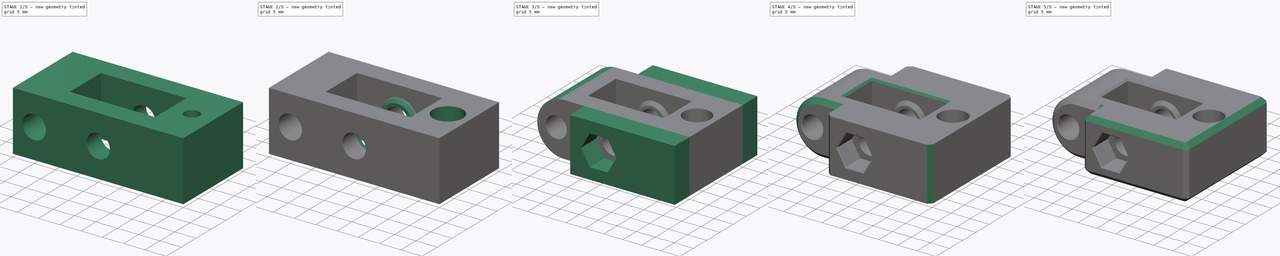
[diagram: build sequence overview — one tinted view per stage of 5, left to right]
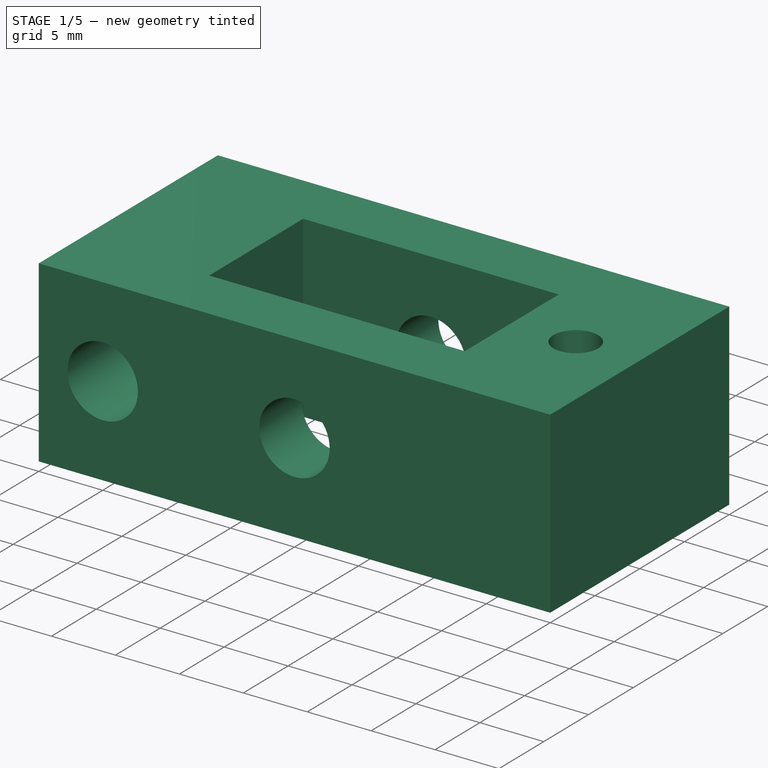
[diagram: stage 1 of 5 — iso view after this stage's code; geometry added in this stage tinted green]
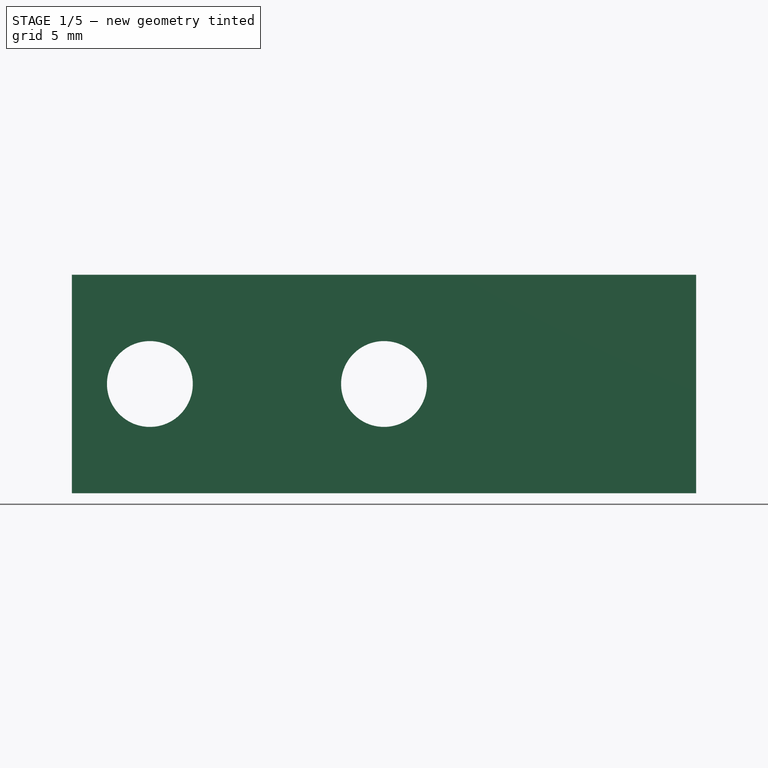
[diagram: stage 1 of 5 — front view after this stage's code; geometry added in this stage tinted green]
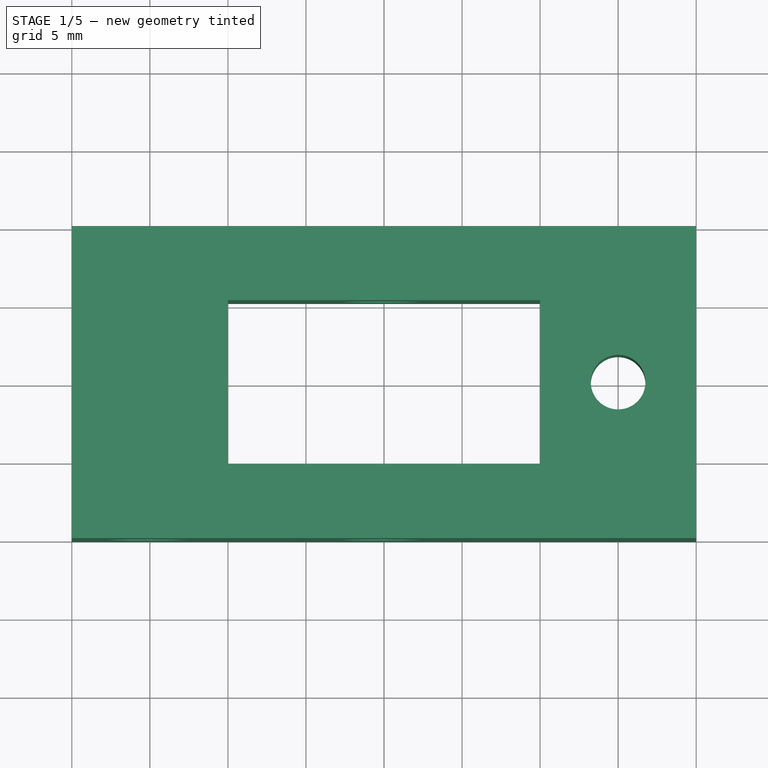
[diagram: stage 1 of 5 — top view after this stage's code; geometry added in this stage tinted green]
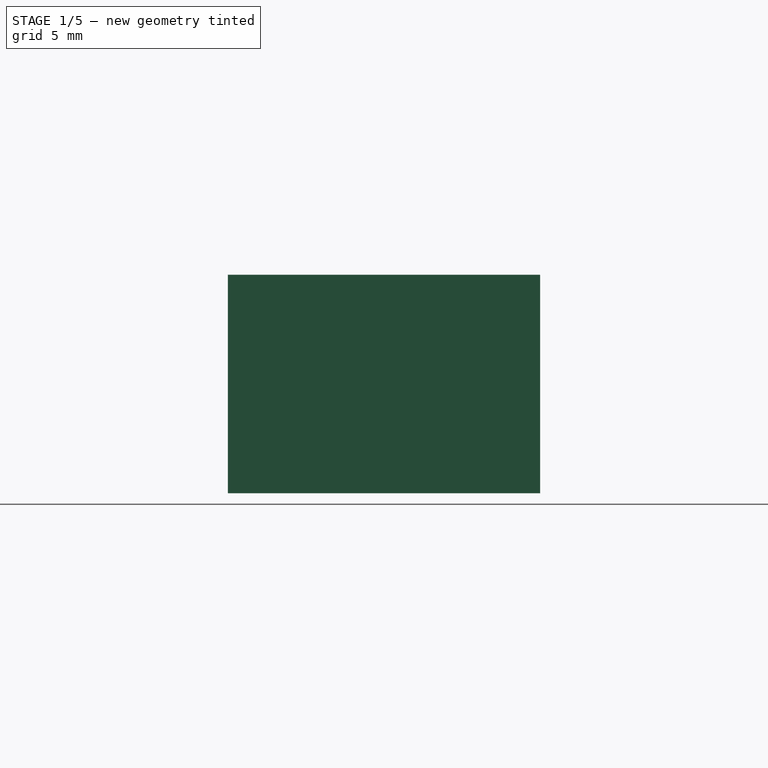
[diagram: stage 1 of 5 — right view after this stage's code; geometry added in this stage tinted green]
FCSTD DOCUMENT  (FreeCAD 0.19R24276 (Git))
Label: belt-tension-arm
License: All rights reserved
LicenseURL: http://en.wikipedia.org/wiki/All_rights_reserved
objects: Sketcher::SketchObject×9, PartDesign::Plane×8, PartDesign::Chamfer×7, PartDesign::Pad×5, PartDesign::Pocket×4, PartDesign::Fillet×1, PartDesign::Body×1
note: 52 computed .brp shape members not serialized (recipe doc carries the construction recipe); baked Part::Feature solids carry a one-line shape summary decoded from their .brp

FEATURE [Sketcher::SketchObject] Sketch
  FullyConstrained = true
  MapMode = 5
  Support = -> [XY_Plane]
  sketch-geometry (10):
    g0: LineSegment StartX=0 StartY=0 StartZ=0 EndX=40 EndY=0 EndZ=0
    g1: LineSegment StartX=40 StartY=0 StartZ=0 EndX=40 EndY=20 EndZ=0
    g2: LineSegment StartX=40 StartY=20 StartZ=0 EndX=0 EndY=20 EndZ=0
    g3: LineSegment StartX=0 StartY=20 StartZ=0 EndX=0 EndY=0 EndZ=0
    g4: LineSegment StartX=10 StartY=15.25 StartZ=0 EndX=30 EndY=15.25 EndZ=0
    g5: LineSegment StartX=30 StartY=15.25 StartZ=0 EndX=30 EndY=4.75 EndZ=0
    g6: LineSegment StartX=30 StartY=4.75 StartZ=0 EndX=10 EndY=4.75 EndZ=0
    g7: LineSegment StartX=10 StartY=4.75 StartZ=0 EndX=10 EndY=15.25 EndZ=0
    g8: LineSegment StartX=0 StartY=10 StartZ=0 EndX=40 EndY=10 EndZ=0
    g9: Circle CenterX=35 CenterY=10 CenterZ=0 NormalX=0 NormalY=0 NormalZ=1 AngleXU=0 Radius=1.75
  constraints (30):
    c: PointOnObject(g3,g-2)
    c: PointOnObject(g0,g-1)
    c: PointOnObject(g0,g-1)
    c: Coincident(g0,g1)
    c: Vertical(g1)
    c: Coincident(g1,g2)
    c: Horizontal(g2)
    c: PointOnObject(g3,g-2)
    c: DistanceX(g-1,g0) = 40
    c: Coincident(g4,g5)
    c: Coincident(g5,g6)
    c: Coincident(g6,g7)
    c: Coincident(g7,g4)
    c: Horizontal(g4)
    c: Horizontal(g6)
    c: Vertical(g5)
    c: Vertical(g7)
    c: DistanceX(g4,g4) = 20
    c: DistanceY(g7,g7) = 10.5
    c: PointOnObject(g8,g3)
    c: PointOnObject(g8,g1)
    c: DistanceY(g-1,g8) = 10
    c: Symmetric(g4,g6,g8)
    c: DistanceX(g-1,g6) = 10
    c: PointOnObject(g9,g8)
    c: Diameter(g9) = 3.5
    c: DistanceX(g-1,g9) = 35
    c: Coincident(g3,g2)
    c: DistanceY(g8,g2) = 10
    c: Coincident(g3,g0)
FEATURE [PartDesign::Pad] Pad  label="Base Feature"
  AllowMultiFace = false
  Direction = (1,1,1)
  Length = 14
  Length2 = 100
  Profile = -> Sketch
  Type = 0
FEATURE [Sketcher::SketchObject] Sketch001
  FullyConstrained = true
  MapMode = 5
  Support = -> [XY_Plane]
  sketch-geometry (7):
    g0: LineSegment StartX=37.8 StartY=8.38342 StartZ=0 EndX=37.8 EndY=11.6166 EndZ=0
    g1: LineSegment StartX=37.8 StartY=11.6166 StartZ=0 EndX=35 EndY=13.2332 EndZ=0
    g2: LineSegment StartX=35 StartY=13.2332 StartZ=0 EndX=32.2 EndY=11.6166 EndZ=0
    g3: LineSegment StartX=32.2 StartY=11.6166 StartZ=0 EndX=32.2 EndY=8.38342 EndZ=0
    g4: LineSegment StartX=32.2 StartY=8.38342 StartZ=0 EndX=35 EndY=6.76684 EndZ=0
    g5: LineSegment StartX=35 StartY=6.76684 StartZ=0 EndX=37.8 EndY=8.38342 EndZ=0
    g6: Circle CenterX=35 CenterY=10 CenterZ=0 NormalX=0 NormalY=0 NormalZ=1 AngleXU=0 Radius=3.23316
  constraints (17):
    c: Coincident(g0,g1)
    c: Coincident(g1,g2)
    c: Coincident(g2,g3)
    c: Coincident(g3,g4)
    c: Coincident(g4,g5)
    c: Coincident(g5,g0)
    c: Equal(g0, g1-g5) x5
    c: PointOnObject(g0,g6)
    c: PointOnObject(g1,g6)
    c: PointOnObject(g2,g6)
    c: PointOnObject(g3,g6)
    c: PointOnObject(g4,g6)
    c: PointOnObject(g5,g6)
    c: DistanceX(g2,g0) = 5.6
    c: DistanceX(g-1,g6) = 35
    c: Vertical(g3)
    c: DistanceY(g-1,g6) = 10
FEATURE [PartDesign::Pocket] Pocket  label="M3 Hex Nut Pocket"
  AllowMultiFace = false
  BaseFeature = -> Pad
  Length = 5
  Length2 = 100
  Profile = -> Sketch001
  Reversed = true
  Type = 0
FEATURE [Sketcher::SketchObject] Sketch002
  FullyConstrained = true
  MapMode = 5
  Placement = pos=(0,0,0) rot=(1,0,0;1.5708rad)
  Support = -> [XZ_Plane]
  sketch-geometry (3):
    g0: Circle CenterX=5 CenterY=7 CenterZ=0 NormalX=0 NormalY=0 NormalZ=1 AngleXU=0 Radius=2.75
    g1: Circle CenterX=20 CenterY=7 CenterZ=0 NormalX=0 NormalY=0 NormalZ=1 AngleXU=0 Radius=2.75
    g2: LineSegment StartX=5 StartY=7 StartZ=0 EndX=20 EndY=7 EndZ=0
  constraints (8):
    c: Diameter(g0) = 5.5
    c: Diameter(g1) = 5.5
    c: DistanceX(g-1,g0) = 5
    c: DistanceX(g-1,g1) = 20
    c: DistanceY(g-1,g0) = 7
    c: Coincident(g2,g0)
    c: Coincident(g2,g1)
    c: Horizontal(g2)
FEATURE [PartDesign::Pocket] Pocket001  label="M5x0.8 Thru Holes"
  AllowMultiFace = false
  BaseFeature = -> Pocket
  Length = 20
  Length2 = 100
  Profile = -> Sketch002
  Type = 0
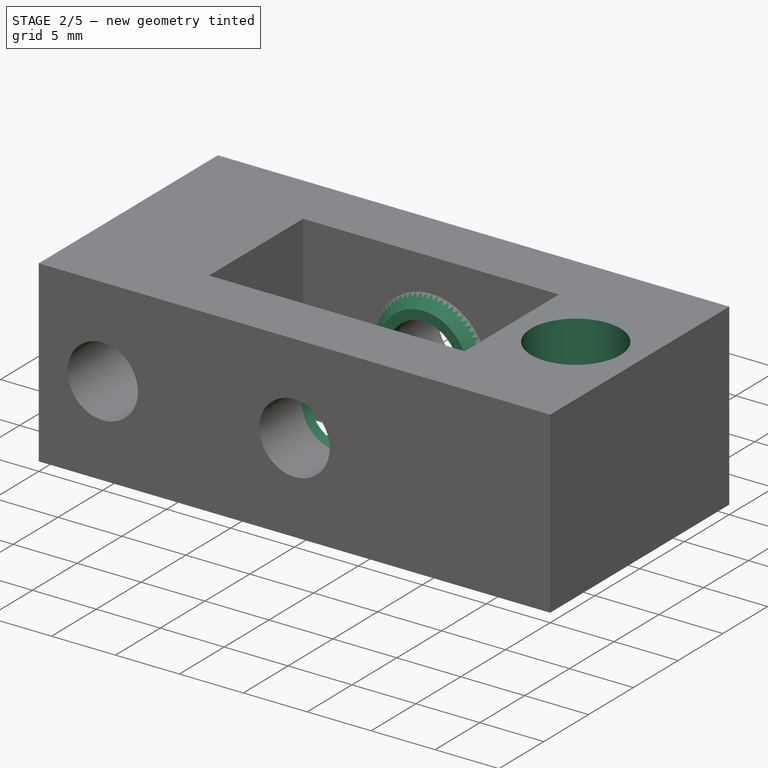
[diagram: stage 2 of 5 — iso view after this stage's code; geometry added in this stage tinted green]
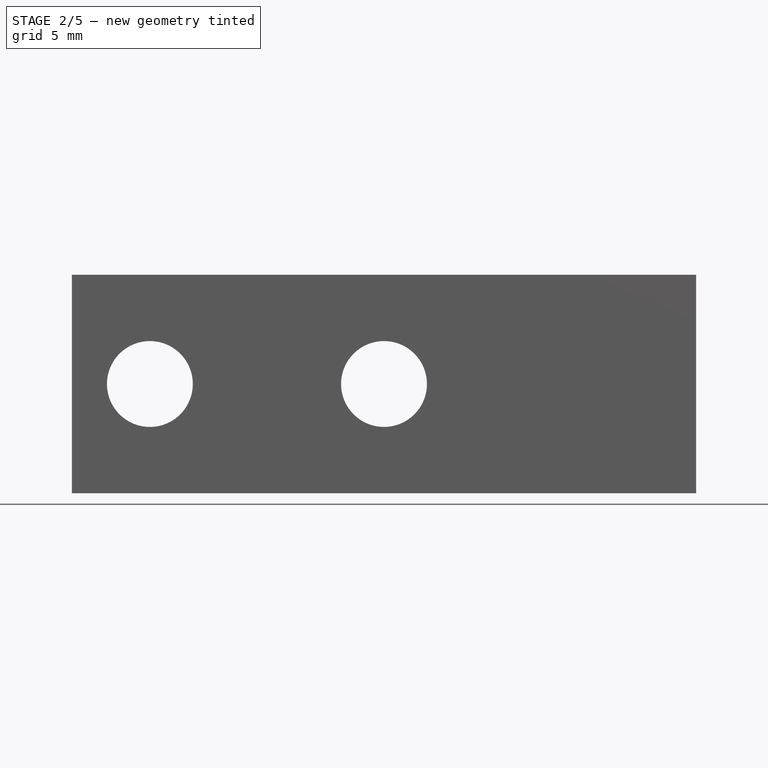
[diagram: stage 2 of 5 — front view after this stage's code; geometry added in this stage tinted green]
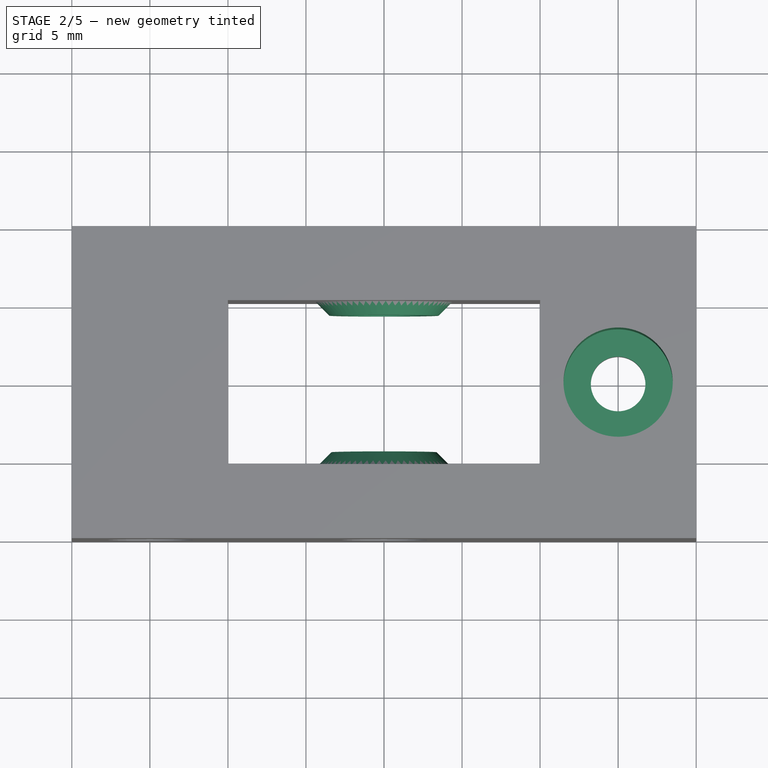
[diagram: stage 2 of 5 — top view after this stage's code; geometry added in this stage tinted green]
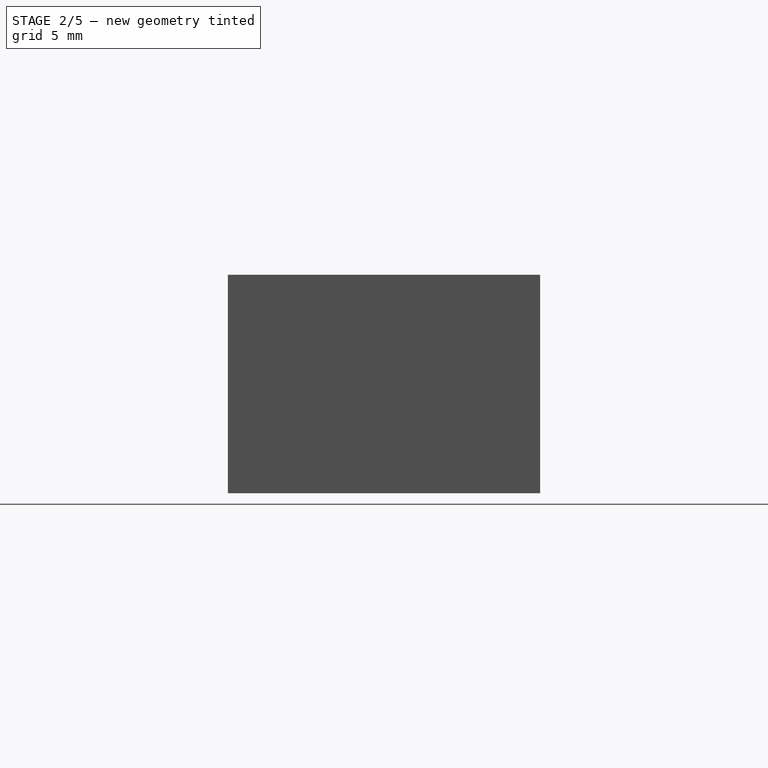
[diagram: stage 2 of 5 — right view after this stage's code; geometry added in this stage tinted green]
FEATURE [PartDesign::Plane] DatumPlane
  Length = 76.4586
  MapMode = 5
  Placement = pos=(0,0,14) rot=(0,0,1;0rad)
  ResizeMode = 0
  Support = -> [Pocket001]
  Width = 61.9586
FEATURE [Sketcher::SketchObject] Sketch003
  FullyConstrained = true
  MapMode = 5
  Placement = pos=(0,0,14) rot=(0,0,1;0rad)
  Support = -> [DatumPlane]
  sketch-geometry (1):
    g0: Circle CenterX=35 CenterY=10 CenterZ=0 NormalX=0 NormalY=0 NormalZ=1 AngleXU=0 Radius=3.5
  constraints (3):
    c: DistanceX(g-1,g0) = 35
    c: DistanceY(g-1,g0) = 10
    c: Diameter(g0) = 7
FEATURE [PartDesign::Pocket] Pocket002  label="M3 Counterbore"
  AllowMultiFace = false
  BaseFeature = -> Pocket001
  Length = 7
  Length2 = 100
  Profile = -> Sketch003
  Type = 0
FEATURE [PartDesign::Plane] DatumPlane002
  Length = 60.5499
  MapMode = 5
  Placement = pos=(37.8,-1.8276e-12,0) rot=(-0.57735,0.57735,0.57735;4.18879rad)
  ResizeMode = 0
  Support = -> [Pocket002]
  Width = 60.0499
FEATURE [PartDesign::Plane] DatumPlane003
  Length = 76.4018
  MapMode = 5
  Placement = pos=(0,15.25,0) rot=(1,0,0;1.5708rad)
  ResizeMode = 0
  Support = -> [Pocket002]
  Width = 61.4018
FEATURE [Sketcher::SketchObject] Sketch004
  FullyConstrained = true
  MapMode = 5
  Placement = pos=(0,15.25,0) rot=(1,0,0;1.5708rad)
  Support = -> [DatumPlane003]
  sketch-geometry (2):
    g0: Circle CenterX=20 CenterY=7 CenterZ=0 NormalX=0 NormalY=0 NormalZ=1 AngleXU=0 Radius=3.5
    g1: Circle CenterX=20 CenterY=7 CenterZ=0 NormalX=0 NormalY=0 NormalZ=1 AngleXU=0 Radius=2.75
  constraints (5):
    c: Diameter(g0) = 7
    c: DistanceX(g-1,g0) = 20
    c: DistanceY(g-1,g0) = 7
    c: Coincident(g1,g0)
    c: Diameter(g1) = 5.5
FEATURE [PartDesign::Pad] Pad001  label="V-Wheel Mounting Boss1"
  BaseFeature = -> Pocket002
  Direction = (1,1,1)
  Length = 0.875
  Length2 = 100
  Profile = -> Sketch004
  Type = 0
FEATURE [PartDesign::Plane] DatumPlane004
  Length = 76.4018
  MapMode = 5
  Placement = pos=(0,4.75,0) rot=(0,0.707107,0.707107;3.14159rad)
  ResizeMode = 0
  Support = -> [Pad001]
  Width = 61.4018
FEATURE [Sketcher::SketchObject] Sketch005
  FullyConstrained = true
  MapMode = 5
  Placement = pos=(0,4.75,0) rot=(0,0.707107,0.707107;3.14159rad)
  Support = -> [DatumPlane004]
  sketch-geometry (2):
    g0: Circle CenterX=-20 CenterY=7 CenterZ=0 NormalX=0 NormalY=0 NormalZ=1 AngleXU=0 Radius=2.75
    g1: Circle CenterX=-20 CenterY=7 CenterZ=0 NormalX=0 NormalY=0 NormalZ=1 AngleXU=0 Radius=3.375
  constraints (5):
    c: Coincident(g1,g0)
    c: Diameter(g0) = 5.5
    c: Diameter(g1) = 6.75
    c: DistanceX(g0,g-1) = 20
    c: DistanceY(g-1,g0) = 7
FEATURE [PartDesign::Pad] Pad002  label="V-Wheel Mounting Boss2"
  BaseFeature = -> Pad001
  Direction = (1,1,1)
  Length = 0.875
  Length2 = 100
  Profile = -> Sketch005
  Type = 0
FEATURE [PartDesign::Plane] DatumPlane005  label="PrintPlane"
  Length = 76.4586
  MapMode = 5
  Placement = pos=(0,0,14) rot=(0,0,1;0rad)
  ResizeMode = 0
  Support = -> [Pad002]
  Width = 61.9586
FEATURE [PartDesign::Chamfer] Chamfer
  Angle = 45
  Base = -> Pad002 [Edge38,Edge41]
  BaseFeature = -> Pad002
  ChamferType = 0
  FlipDirection = false
  Size = 0.87
  Size2 = 1
  SupportTransform = false
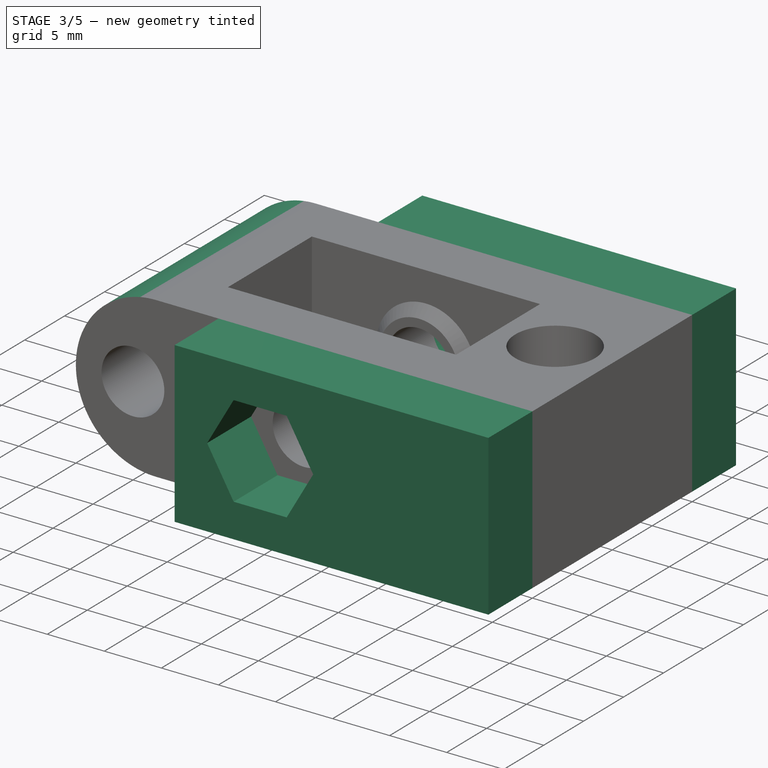
[diagram: stage 3 of 5 — iso view after this stage's code; geometry added in this stage tinted green]
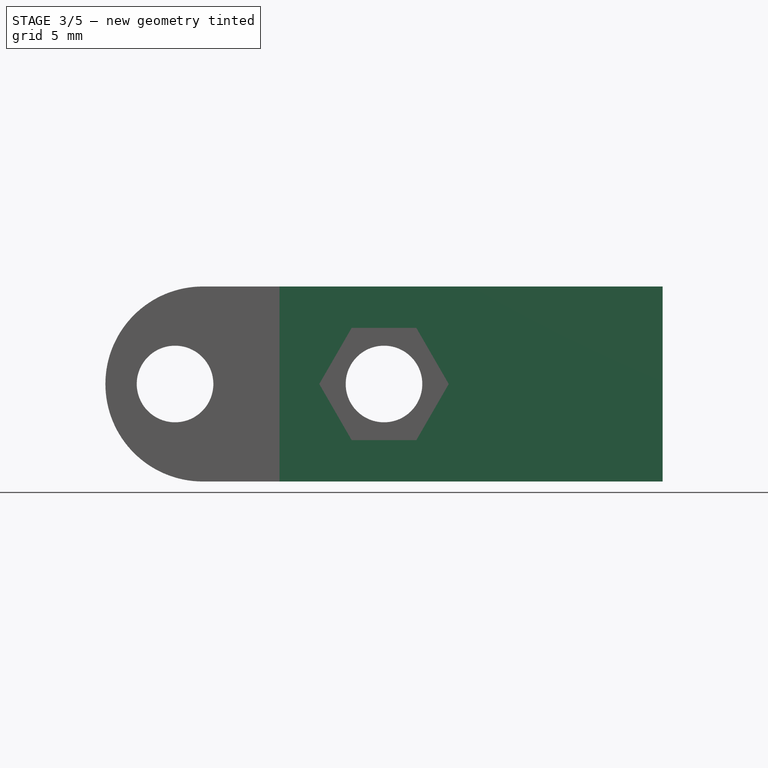
[diagram: stage 3 of 5 — front view after this stage's code; geometry added in this stage tinted green]
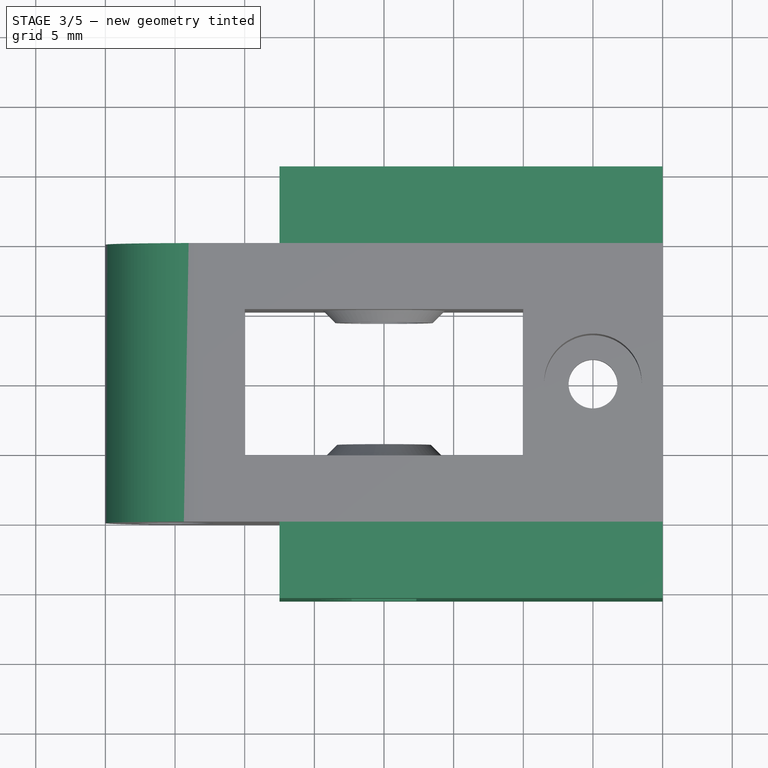
[diagram: stage 3 of 5 — top view after this stage's code; geometry added in this stage tinted green]
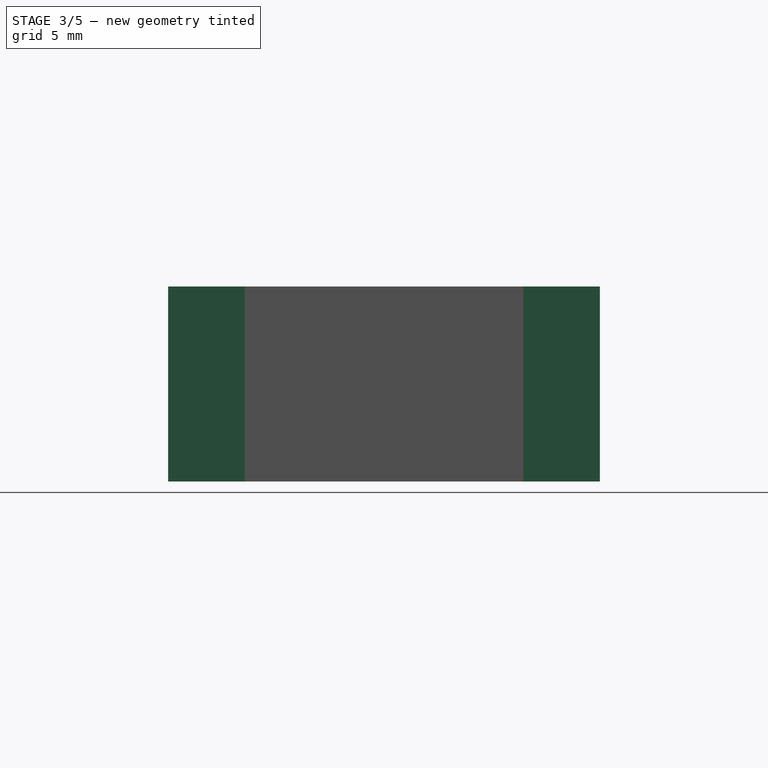
[diagram: stage 3 of 5 — right view after this stage's code; geometry added in this stage tinted green]
FEATURE [PartDesign::Plane] DatumPlane006
  Length = 76.4018
  MapMode = 5
  Placement = pos=(0,0,0) rot=(1,0,0;1.5708rad)
  ResizeMode = 0
  Support = -> [Chamfer]
  Width = 61.4018
FEATURE [Sketcher::SketchObject] Sketch006
  ExternalGeometry = -> [Chamfer,Sketch002]
  FullyConstrained = true
  MapMode = 5
  Placement = pos=(0,0,0) rot=(1,0,0;1.5708rad)
  Support = -> [DatumPlane006]
  sketch-geometry (11):
    g0: LineSegment StartX=12.5 StartY=0 StartZ=0 EndX=40 EndY=0 EndZ=0
    g1: LineSegment StartX=40 StartY=0 StartZ=0 EndX=40 EndY=14 EndZ=0
    g2: LineSegment StartX=40 StartY=14 StartZ=0 EndX=12.5 EndY=14 EndZ=0
    g3: LineSegment StartX=12.5 StartY=14 StartZ=0 EndX=12.5 EndY=0 EndZ=0
    g4: LineSegment StartX=22.3238 StartY=11.025 StartZ=0 EndX=17.6762 EndY=11.025 EndZ=0
    g5: LineSegment StartX=17.6762 StartY=11.025 StartZ=0 EndX=15.3523 EndY=7 EndZ=0
    g6: LineSegment StartX=15.3523 StartY=7 StartZ=0 EndX=17.6762 EndY=2.975 EndZ=0
    g7: LineSegment StartX=17.6762 StartY=2.975 StartZ=0 EndX=22.3238 EndY=2.975 EndZ=0
    g8: LineSegment StartX=22.3238 StartY=2.975 StartZ=0 EndX=24.6477 EndY=7 EndZ=0
    g9: LineSegment StartX=24.6477 StartY=7 StartZ=0 EndX=22.3238 EndY=11.025 EndZ=0
    g10: Circle CenterX=20 CenterY=7 CenterZ=0 NormalX=0 NormalY=0 NormalZ=1 AngleXU=0 Radius=4.64767
  constraints (27):
    c: Coincident(g0,g1)
    c: Coincident(g1,g2)
    c: Coincident(g2,g3)
    c: Coincident(g3,g0)
    c: Horizontal(g0)
    c: Horizontal(g2)
    c: Vertical(g1)
    c: Vertical(g3)
    c: PointOnObject(g0,g-7)
    c: Coincident(g1,g-4)
    c: DistanceX(g2,g1) = 27.5
    c: Coincident(g4,g5)
    c: Coincident(g5,g6)
    c: Coincident(g6,g7)
    c: Coincident(g7,g8)
    c: Coincident(g8,g9)
    c: Coincident(g9,g4)
    c: Equal(g4, g5-g9) x5
    c: PointOnObject(g4,g10)
    c: PointOnObject(g5,g10)
    c: PointOnObject(g6,g10)
    c: PointOnObject(g7,g10)
    c: PointOnObject(g8,g10)
    c: PointOnObject(g9,g10)
    c: Coincident(g10,g-5)
    c: Horizontal(g4)
    c: DistanceY(g6,g4) = 8.05
FEATURE [PartDesign::Pad] Pad003  label="Hex Nut Pocket side boss"
  BaseFeature = -> Chamfer
  Direction = (1,1,1)
  Length = 5.5
  Length2 = 100
  Profile = -> Sketch006
  Type = 0
FEATURE [PartDesign::Plane] DatumPlane007
  Length = 76.4018
  MapMode = 5
  Placement = pos=(0,20,0) rot=(0,0.707107,0.707107;3.14159rad)
  ResizeMode = 0
  Support = -> [Pad003]
  Width = 61.4018
FEATURE [Sketcher::SketchObject] Sketch007
  ExternalGeometry = -> [Pad003]
  FullyConstrained = true
  MapMode = 5
  Placement = pos=(0,20,0) rot=(0,0.707107,0.707107;3.14159rad)
  Support = -> [DatumPlane007]
  sketch-geometry (5):
    g0: LineSegment StartX=-40 StartY=0 StartZ=0 EndX=-12.5 EndY=0 EndZ=0
    g1: LineSegment StartX=-12.5 StartY=0 StartZ=0 EndX=-12.5 EndY=14 EndZ=0
    g2: LineSegment StartX=-12.5 StartY=14 StartZ=0 EndX=-40 EndY=14 EndZ=0
    g3: LineSegment StartX=-40 StartY=14 StartZ=0 EndX=-40 EndY=0 EndZ=0
    g4: Circle CenterX=-20 CenterY=7 CenterZ=0 NormalX=0 NormalY=0 NormalZ=1 AngleXU=0 Radius=4.3
  constraints (13):
    c: Coincident(g0,g1)
    c: Coincident(g1,g2)
    c: Coincident(g2,g3)
    c: Coincident(g3,g0)
    c: Horizontal(g0)
    c: Horizontal(g2)
    c: Vertical(g1)
    c: Vertical(g3)
    c: Coincident(g0,g-5)
    c: PointOnObject(g1,g-3)
    c: Coincident(g4,g-6)
    c: Diameter(g4) = 8.6
    c: DistanceX(g2,g1) = 27.5
FEATURE [PartDesign::Pad] Pad004  label="M5 Counter bore side boss"
  BaseFeature = -> Pad003
  Direction = (1,1,1)
  Length = 5.5
  Length2 = 100
  Profile = -> Sketch007
  Type = 0
FEATURE [PartDesign::Fillet] Fillet
  Base = -> Pad004 [Edge27,Edge13]
  BaseFeature = -> Pad004
  Radius = 6.999
  SupportTransform = false
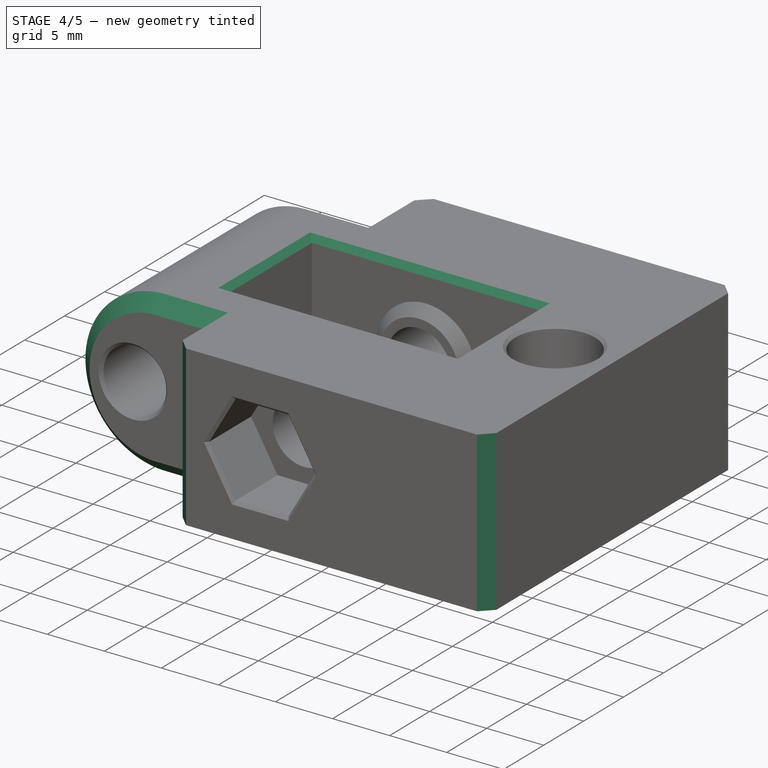
[diagram: stage 4 of 5 — iso view after this stage's code; geometry added in this stage tinted green]
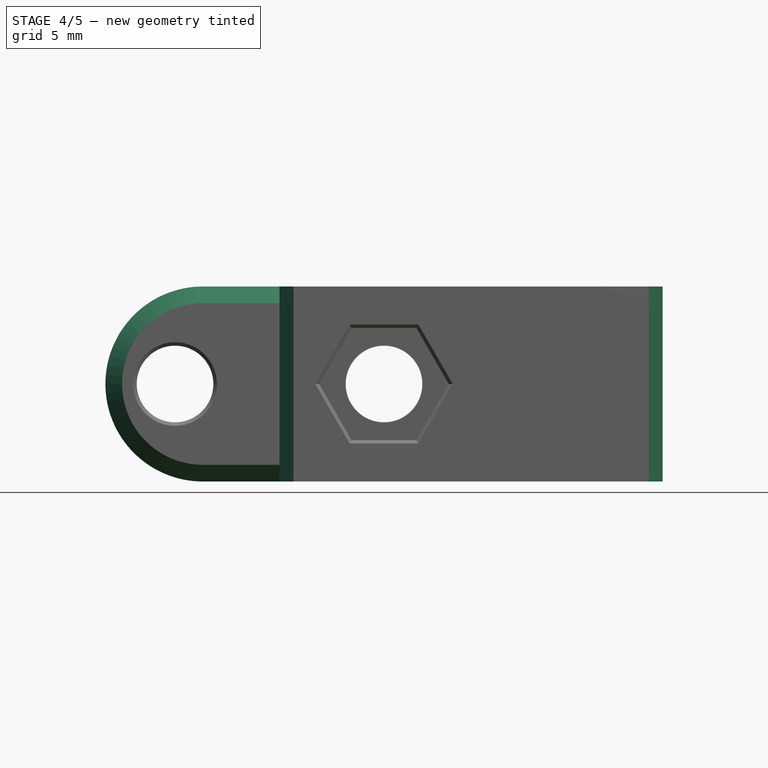
[diagram: stage 4 of 5 — front view after this stage's code; geometry added in this stage tinted green]
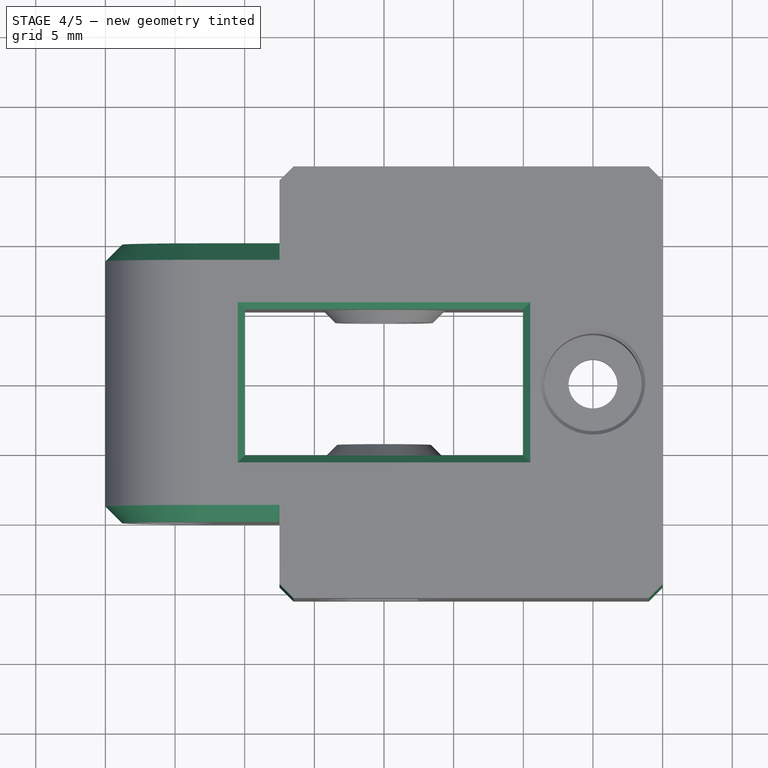
[diagram: stage 4 of 5 — top view after this stage's code; geometry added in this stage tinted green]
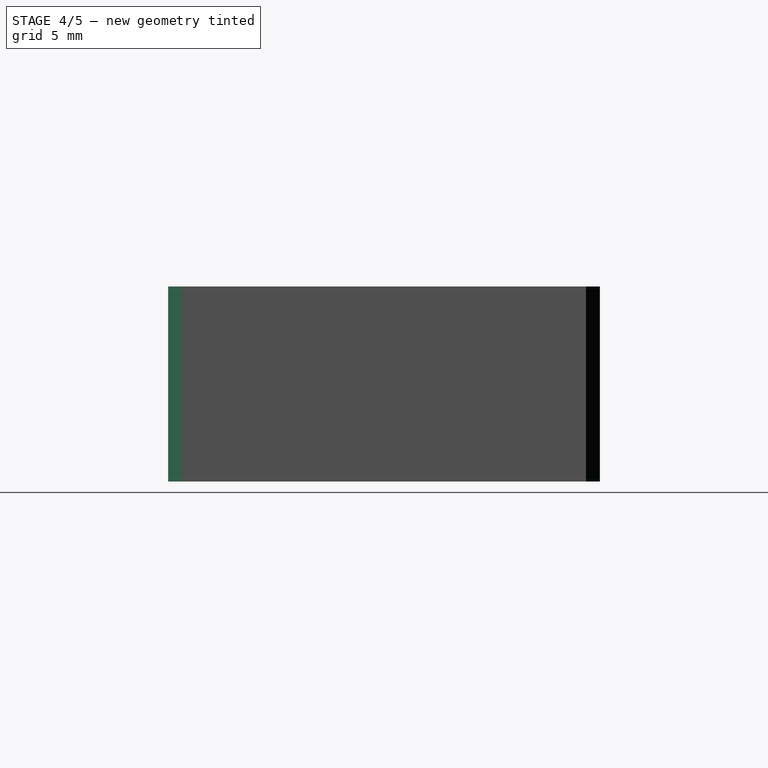
[diagram: stage 4 of 5 — right view after this stage's code; geometry added in this stage tinted green]
FEATURE [PartDesign::Chamfer] Chamfer001
  Angle = 45
  Base = -> Fillet [Edge81,Edge70,Edge79,Edge62]
  BaseFeature = -> Fillet
  ChamferType = 0
  FlipDirection = false
  Size = 1
  Size2 = 1
  SupportTransform = false
FEATURE [PartDesign::Chamfer] Chamfer002
  Angle = 45
  Base = -> Chamfer001 [Edge34,Edge29,Edge30,Edge31,Edge32,Edge33,Edge106,Edge44,Edge51,Edge25,Edge26,Edge21,Edge22,Edge23,Edge24,Edge95]
  BaseFeature = -> Chamfer001
  ChamferType = 0
  FlipDirection = false
  Size = 0.25
  Size2 = 1
  SupportTransform = false
FEATURE [PartDesign::Chamfer] Chamfer003
  Angle = 45
  Base = -> Chamfer002 [Edge16,Edge15,Edge13,Edge14,Edge57,Edge62,Edge64,Edge60]
  BaseFeature = -> Chamfer002
  ChamferType = 0
  FlipDirection = false
  Size = 0.5
  Size2 = 1
  SupportTransform = false
FEATURE [PartDesign::Chamfer] Chamfer004
  Angle = 45
  Base = -> Chamfer003 [Edge41,Edge53]
  BaseFeature = -> Chamfer003
  ChamferType = 0
  FlipDirection = false
  Size = 1.2
  Size2 = 1
  SupportTransform = false
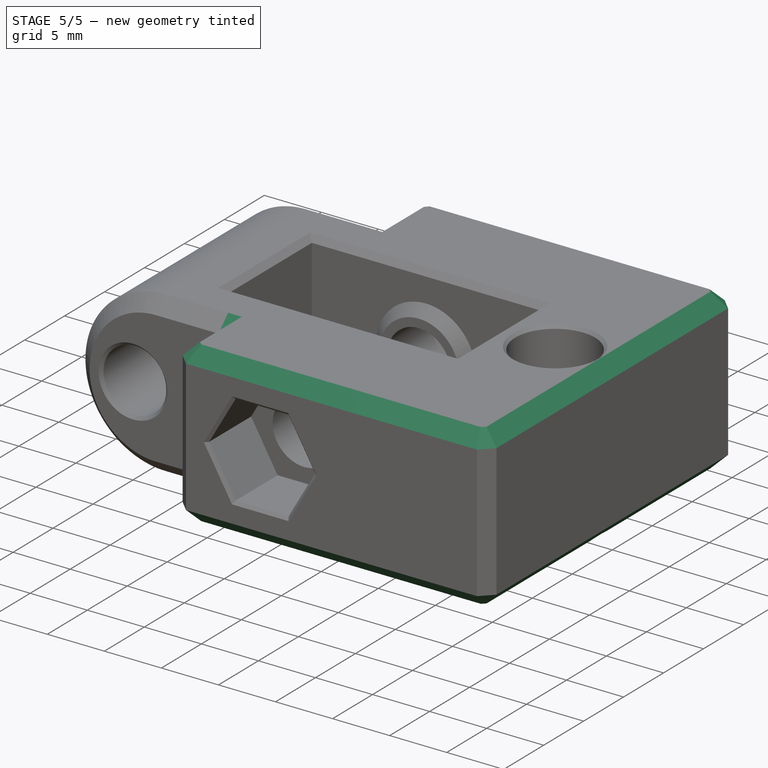
[diagram: stage 5 of 5 — iso view after this stage's code; geometry added in this stage tinted green]
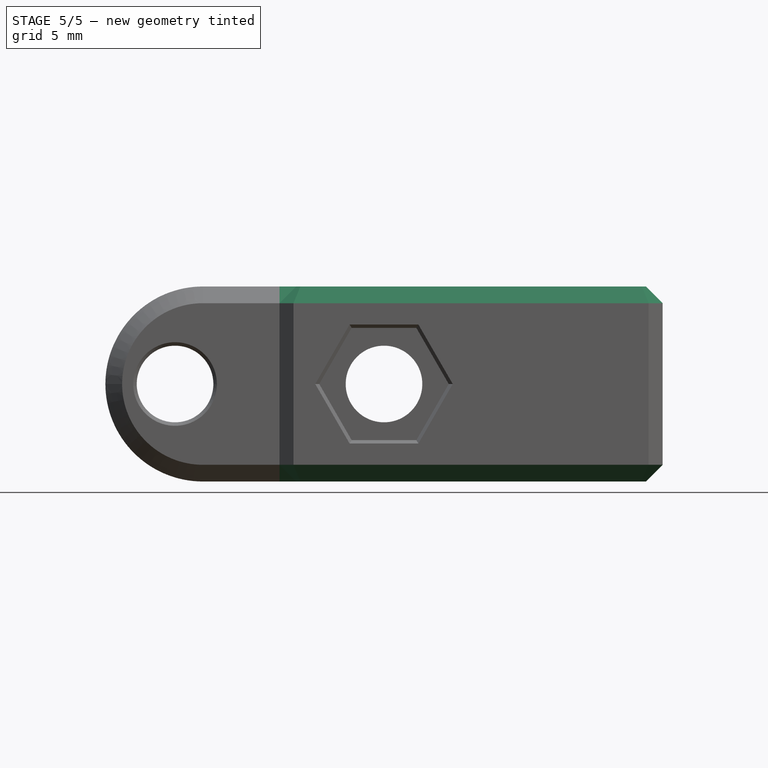
[diagram: stage 5 of 5 — front view after this stage's code; geometry added in this stage tinted green]
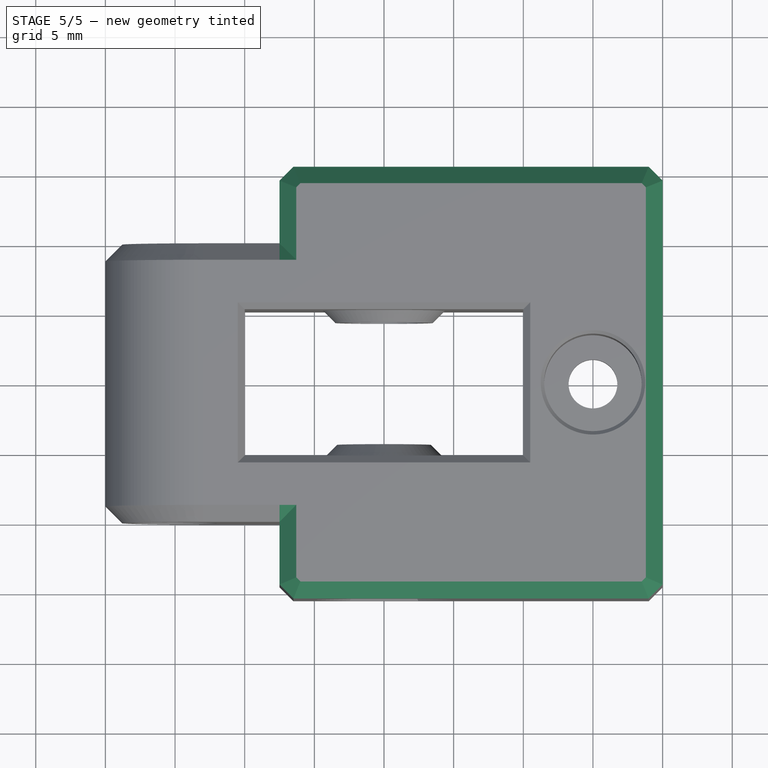
[diagram: stage 5 of 5 — top view after this stage's code; geometry added in this stage tinted green]
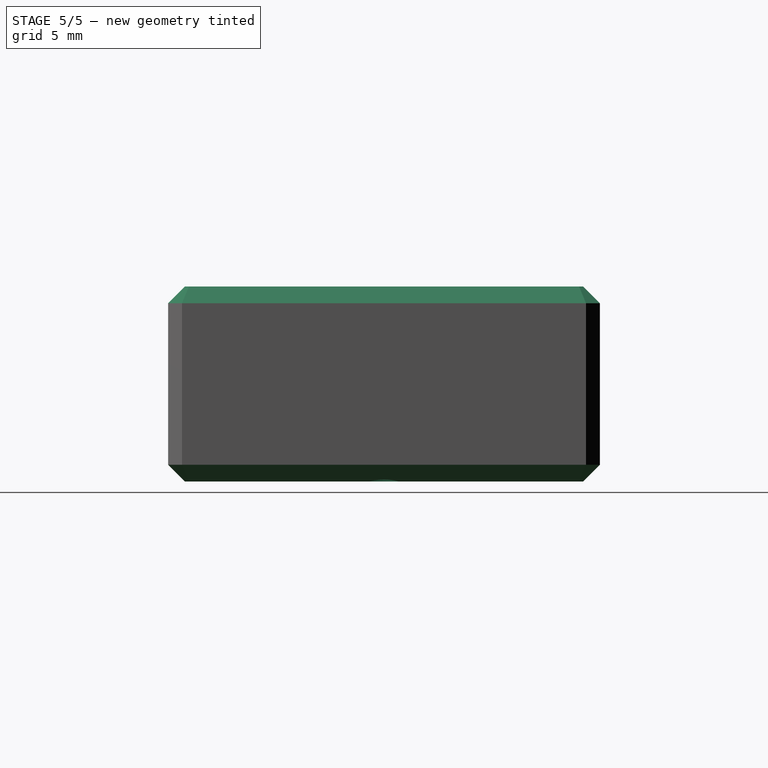
[diagram: stage 5 of 5 — right view after this stage's code; geometry added in this stage tinted green]
FEATURE [PartDesign::Chamfer] Chamfer005
  Angle = 45
  Base = -> Chamfer004 [Edge31,Edge98,Edge97,Edge99,Edge100,Edge49,Edge103,Edge104,Edge105,Edge106,Edge37,Edge36,Edge4,Edge39,Edge44,Edge45,Edge46,Edge47,Edge6,Edge40,Edge41,Edge42,Edge43,Edge29,Edge8]
  BaseFeature = -> Chamfer004
  ChamferType = 0
  FlipDirection = false
  Size = 1.199
  Size2 = 1
  SupportTransform = false
FEATURE [PartDesign::Plane] DatumPlane008
  AttachmentOffset = pos=(0,0,2.5) rot=(0,0,1;0rad)
  Length = 76.4586
  MapMode = 5
  Placement = pos=(0,0,2.5) rot=(1,0,0;3.14159rad)
  ResizeMode = 0
  Support = -> [Chamfer005]
  Width = 61.9586
FEATURE [Sketcher::SketchObject] Sketch008
  ExternalGeometry = -> [Chamfer005]
  FullyConstrained = false
  MapMode = 5
  Placement = pos=(0,0,2.5) rot=(1,0,0;3.14159rad)
  Support = -> [DatumPlane008]
  sketch-geometry (1):
    g0: Circle CenterX=35 CenterY=-10 CenterZ=0 NormalX=0 NormalY=0 NormalZ=1 AngleXU=0 Radius=3.94283
  constraints (1):
    c: Coincident(g0,g-3)
FEATURE [PartDesign::Pocket] Pocket004  label="Acorn Nut Relief Cut"
  BaseFeature = -> Chamfer005
  Length = 5
  Length2 = 100
  Profile = -> Sketch008
  Reversed = true
  Type = 0
FEATURE [PartDesign::Chamfer] Chamfer006
  Angle = 45
  Base = -> Pocket004 [Edge42]
  BaseFeature = -> Pocket004
  ChamferType = 0
  FlipDirection = false
  Size = 0.5
  Size2 = 1
  SupportTransform = false
FEATURE [PartDesign::Body] Body
  Group = -> [Sketch,Pad,Sketch001,Pocket,Sketch002,Pocket001,DatumPlane,Sketch003,Pocket002,DatumPlane002,DatumPlane003,Sketch004,Pad001,DatumPlane004,Sketch005,Pad002,DatumPlane005,Chamfer,DatumPlane006,Sketch006,Pad003,DatumPlane007,Sketch007,Pad004,Fillet,Chamfer001,Chamfer002,Chamfer003,Chamfer004,Chamfer005,DatumPlane008,Sketch008,Pocket004,Chamfer006]
  Origin = -> Origin
  Tip = -> Chamfer006
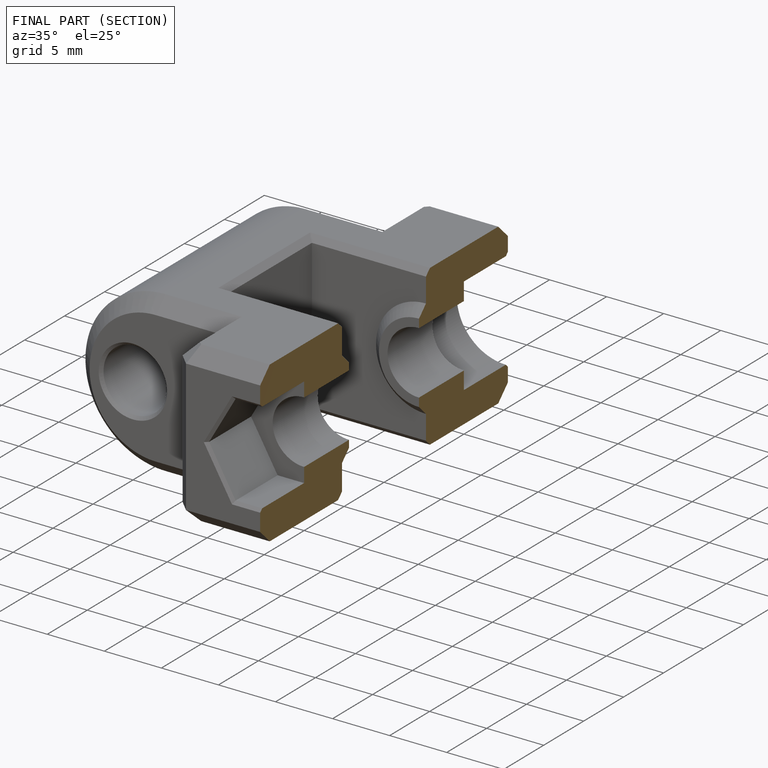
[diagram: finished part — half-section view (interior)]
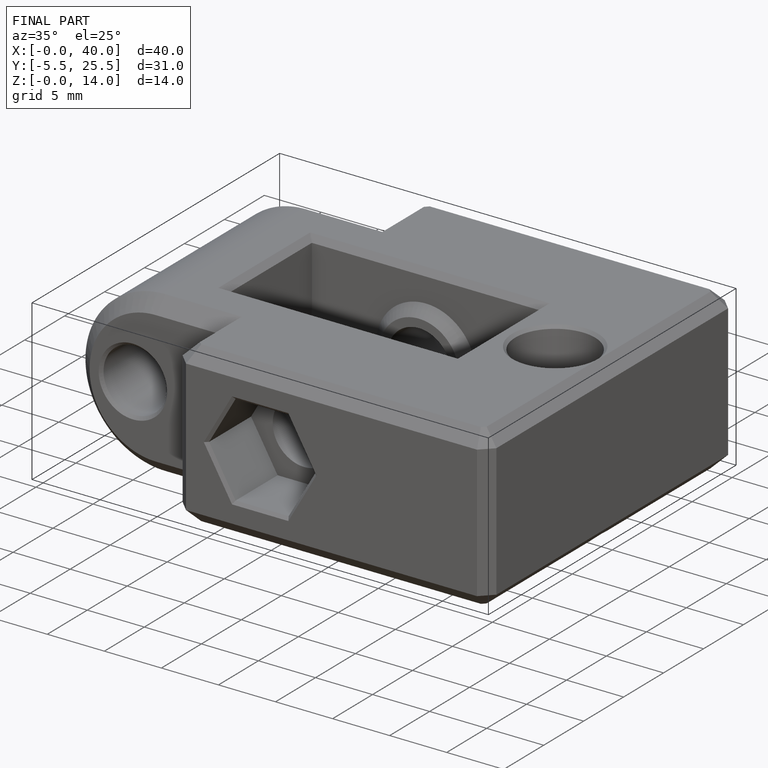
[diagram: finished part — iso view with bounding-box wireframe]
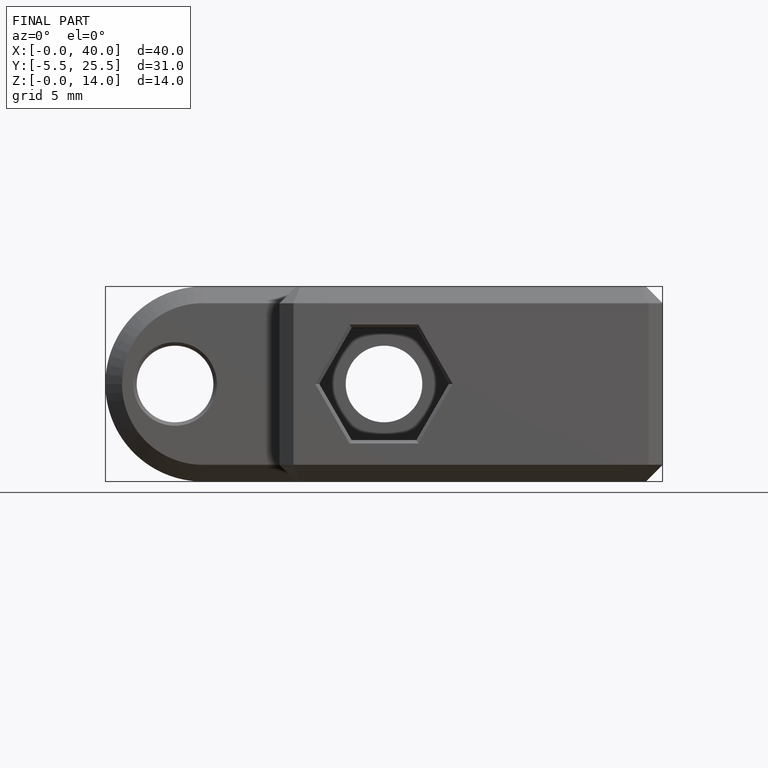
[diagram: finished part — front view with bounding-box wireframe]
